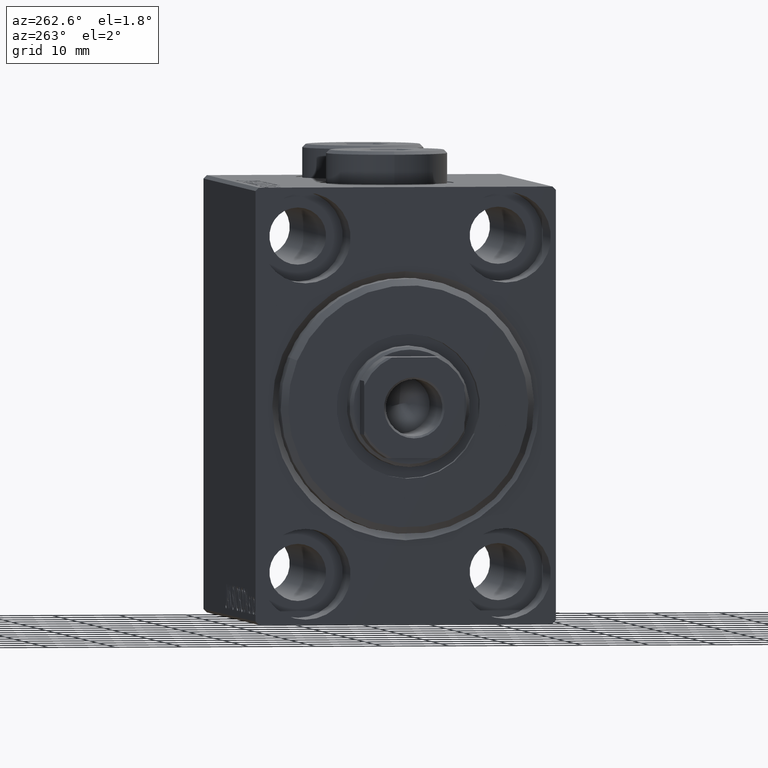
[diagram: clean part render]
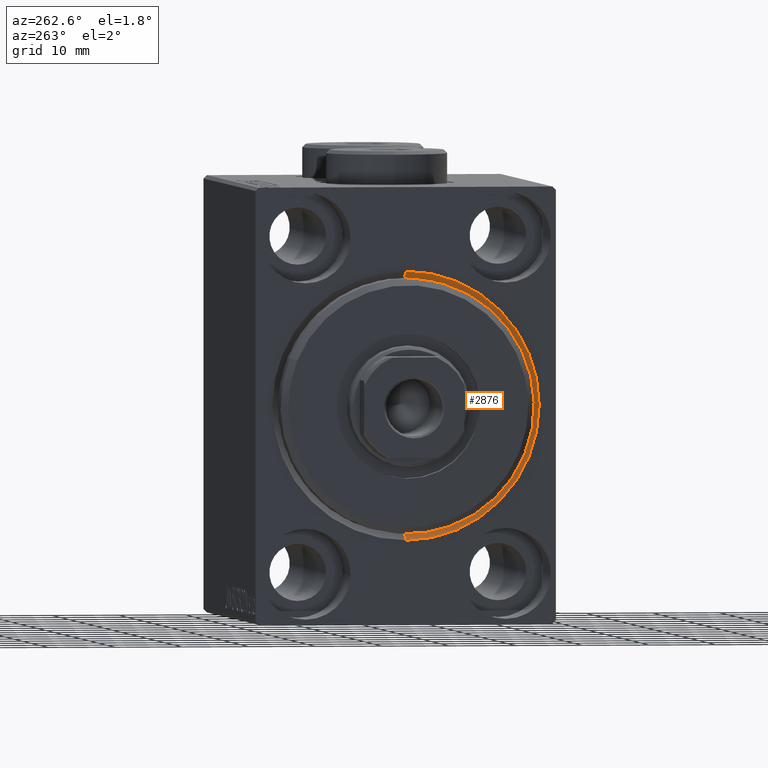
[diagram: same view with one face highlighted and labeled with its STEP entity id]
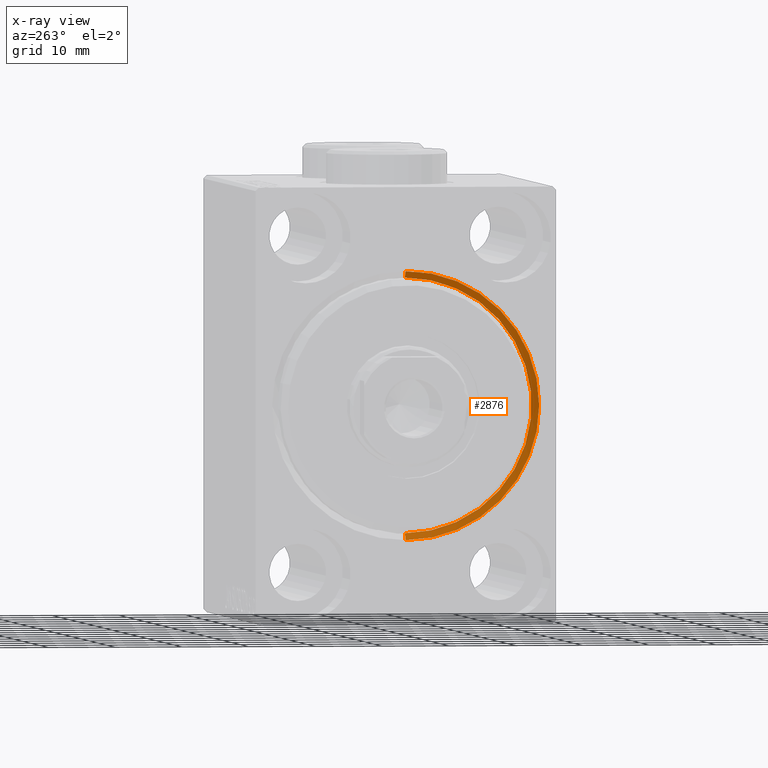
[diagram: x-ray of the same camera — body ghosted, the highlighted face saturated]
A machine part, auxiliary view. The second image highlights one B-rep face of the part: STEP entity #2876.
The next image is the same camera in x-ray: the body ghosted, the highlighted face saturated — about 0% of this face is hidden behind the body in this view.
In plain terms, the highlighted conical surface has half-angle 45 deg.
Its self-contained STEP definition (entity closure, byte-faithful):
#36 = CARTESIAN_POINT ( 'NONE',  ( 1.000000000000000888, 2.326828918379970970E-15, -19.00000000000000000 ) ) ;
#2015 = CARTESIAN_POINT ( 'NONE',  ( 0.000000000000000000, 2.449293598294705330E-15, -19.99999999999998934 ) ) ;
#2627 = LINE ( 'NONE', #9489, #12081 ) ;
#2748 = CARTESIAN_POINT ( 'NONE',  ( 1.000000000000000888, 0.000000000000000000, 0.000000000000000000 ) ) ;
#2876 = ADVANCED_FACE ( 'NONE', ( #19916 ), #43761, .F. ) ;
#3042 = ORIENTED_EDGE ( 'NONE', *, *, #42244, .T. ) ;
#3079 = CARTESIAN_POINT ( 'NONE',  ( 1.000000000000000888, 0.000000000000000000, 19.00000000000000000 ) ) ;
#3972 = AXIS2_PLACEMENT_3D ( 'NONE', #11624, #22373, #23058 ) ;
#4878 = DIRECTION ( 'NONE',  ( 0.000000000000000000, 0.000000000000000000, -1.000000000000000000 ) ) ;
#5162 = VECTOR ( 'NONE', #5204, 999.9999999999998863 ) ;
#5204 = DIRECTION ( 'NONE',  ( -0.7071067811865512365, 0.000000000000000000, 0.7071067811865439090 ) ) ;
#5253 = ORIENTED_EDGE ( 'NONE', *, *, #29345, .F. ) ;
#9489 = CARTESIAN_POINT ( 'NONE',  ( 1.000000000000000888, 2.326828918379970970E-15, -19.00000000000000000 ) ) ;
#11624 = CARTESIAN_POINT ( 'NONE',  ( 1.000000000000000888, 0.000000000000000000, 0.000000000000000000 ) ) ;
#11780 = VERTEX_POINT ( 'NONE', #41022 ) ;
#12081 = VECTOR ( 'NONE', #20235, 999.9999999999998863 ) ;
#12291 = LINE ( 'NONE', #16192, #5162 ) ;
#13152 = AXIS2_PLACEMENT_3D ( 'NONE', #2748, #29967, #22661 ) ;
#14314 = ORIENTED_EDGE ( 'NONE', *, *, #33702, .F. ) ;
#14904 = CIRCLE ( 'NONE', #3972, 19.00000000000000000 ) ;
#16192 = CARTESIAN_POINT ( 'NONE',  ( 1.000000000000000888, 0.000000000000000000, 19.00000000000000000 ) ) ;
#19069 = DIRECTION ( 'NONE',  ( 1.000000000000000000, 0.000000000000000000, 0.000000000000000000 ) ) ;
#19916 = FACE_OUTER_BOUND ( 'NONE', #26707, .T. ) ;
#20235 = DIRECTION ( 'NONE',  ( -0.7071067811865512365, 8.659560562354888485E-17, -0.7071067811865439090 ) ) ;
#22373 = DIRECTION ( 'NONE',  ( -1.000000000000000000, 0.000000000000000000, 0.000000000000000000 ) ) ;
#22661 = DIRECTION ( 'NONE',  ( 0.000000000000000000, 0.000000000000000000, 1.000000000000000000 ) ) ;
#23058 = DIRECTION ( 'NONE',  ( 0.000000000000000000, 0.000000000000000000, -1.000000000000000000 ) ) ;
#25045 = EDGE_CURVE ( 'NONE', #42398, #11780, #12291, .T. ) ;
#26707 = EDGE_LOOP ( 'NONE', ( #14314, #3042, #5253, #29094 ) ) ;
#29094 = ORIENTED_EDGE ( 'NONE', *, *, #25045, .F. ) ;
#29345 = EDGE_CURVE ( 'NONE', #11780, #36194, #40304, .T. ) ;
#29361 = CARTESIAN_POINT ( 'NONE',  ( 0.000000000000000000, 0.000000000000000000, 0.000000000000000000 ) ) ;
#29967 = DIRECTION ( 'NONE',  ( -1.000000000000000000, 0.000000000000000000, 0.000000000000000000 ) ) ;
#30111 = AXIS2_PLACEMENT_3D ( 'NONE', #29361, #19069, #4878 ) ;
#33702 = EDGE_CURVE ( 'NONE', #36787, #42398, #14904, .T. ) ;
#36194 = VERTEX_POINT ( 'NONE', #2015 ) ;
#36787 = VERTEX_POINT ( 'NONE', #36 ) ;
#40304 = CIRCLE ( 'NONE', #30111, 19.99999999999998934 ) ;
#41022 = CARTESIAN_POINT ( 'NONE',  ( 0.000000000000000000, 0.000000000000000000, 19.99999999999998934 ) ) ;
#42244 = EDGE_CURVE ( 'NONE', #36787, #36194, #2627, .T. ) ;
#42398 = VERTEX_POINT ( 'NONE', #3079 ) ;
#43761 = CONICAL_SURFACE ( 'NONE', #13152, 19.00000000000000000, 0.7853981633974430610 ) ;